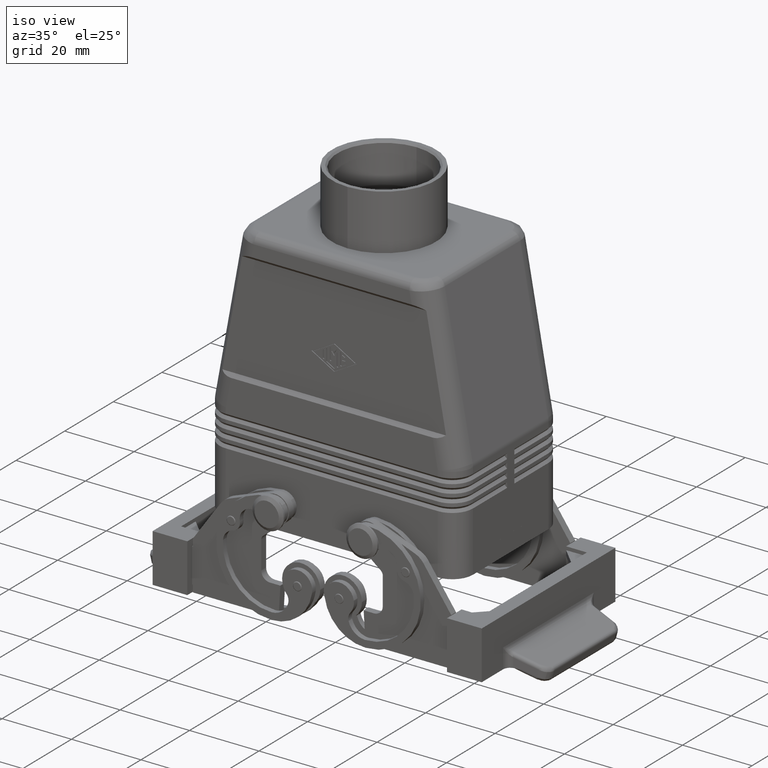
[diagram: clean part render]
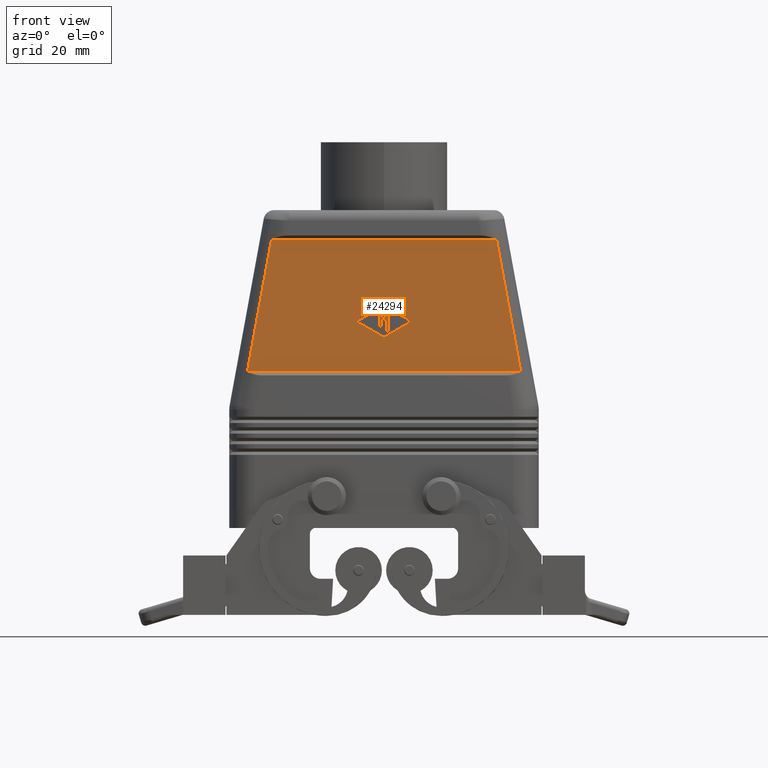
[diagram: tour spotlight — one face highlighted and labeled with its STEP entity id]
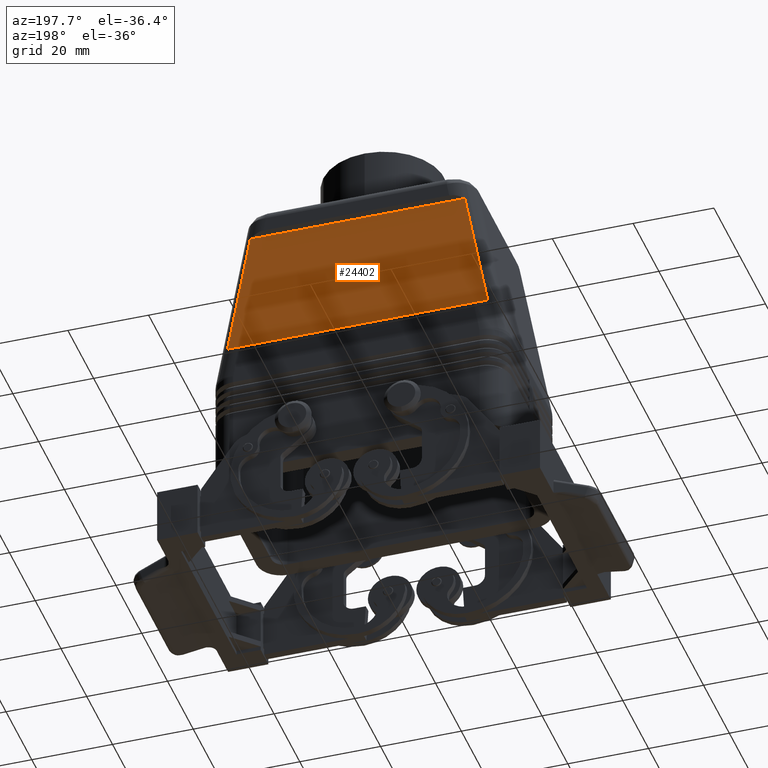
[diagram: tour spotlight — one face highlighted and labeled with its STEP entity id]
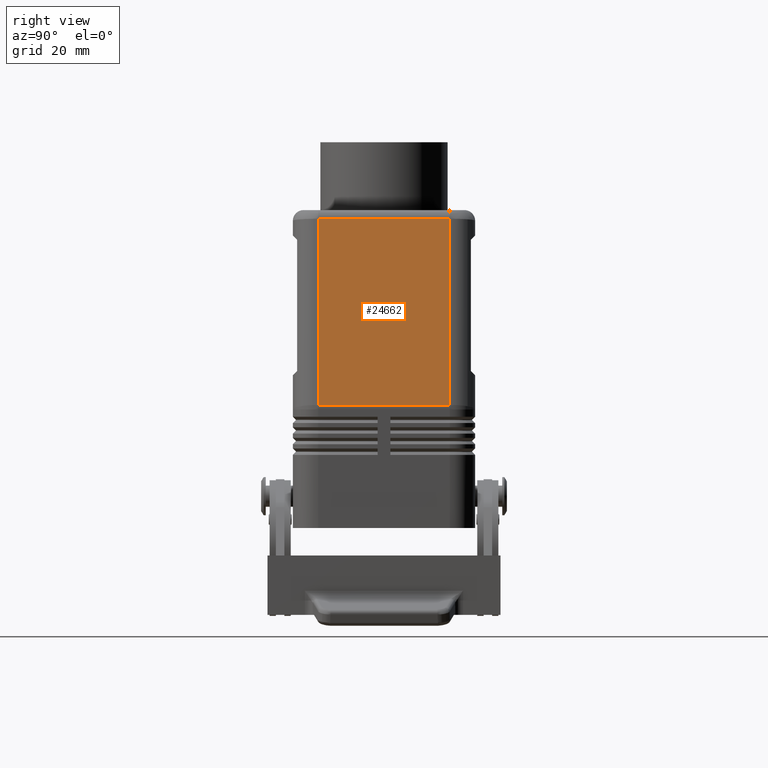
[diagram: tour spotlight — one face highlighted and labeled with its STEP entity id]
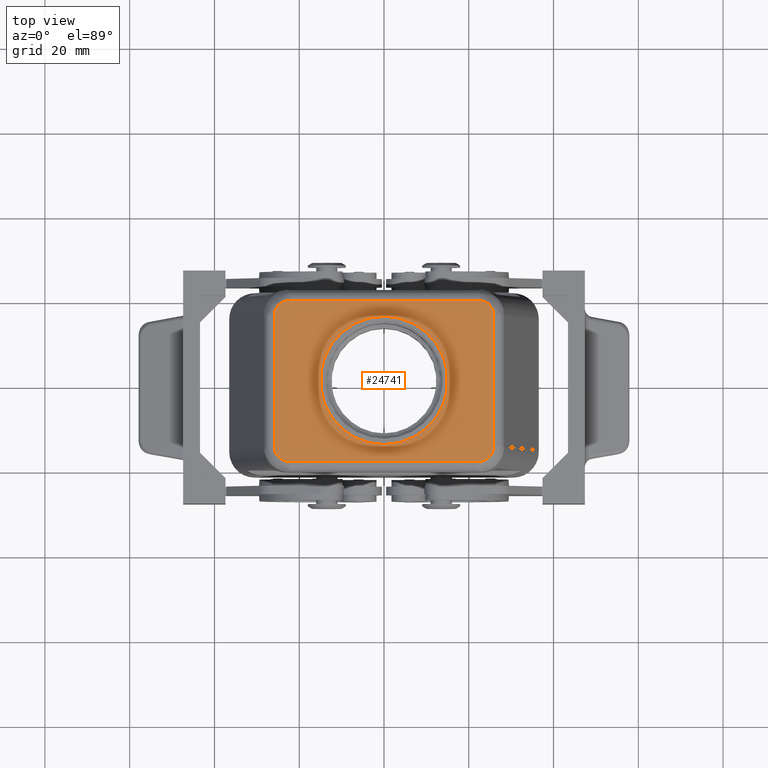
[diagram: tour spotlight — one face highlighted and labeled with its STEP entity id]
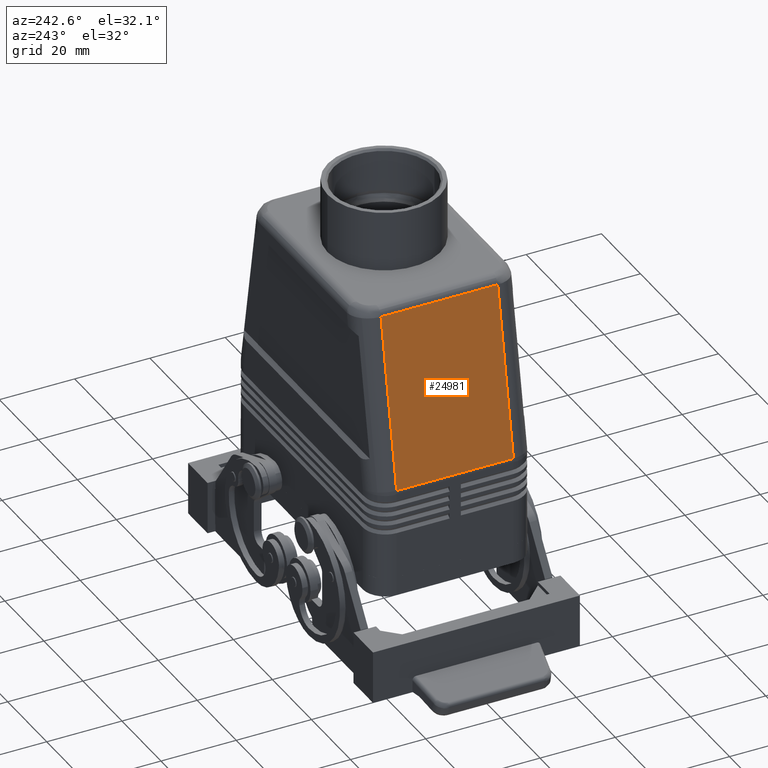
[diagram: tour spotlight — one face highlighted and labeled with its STEP entity id]
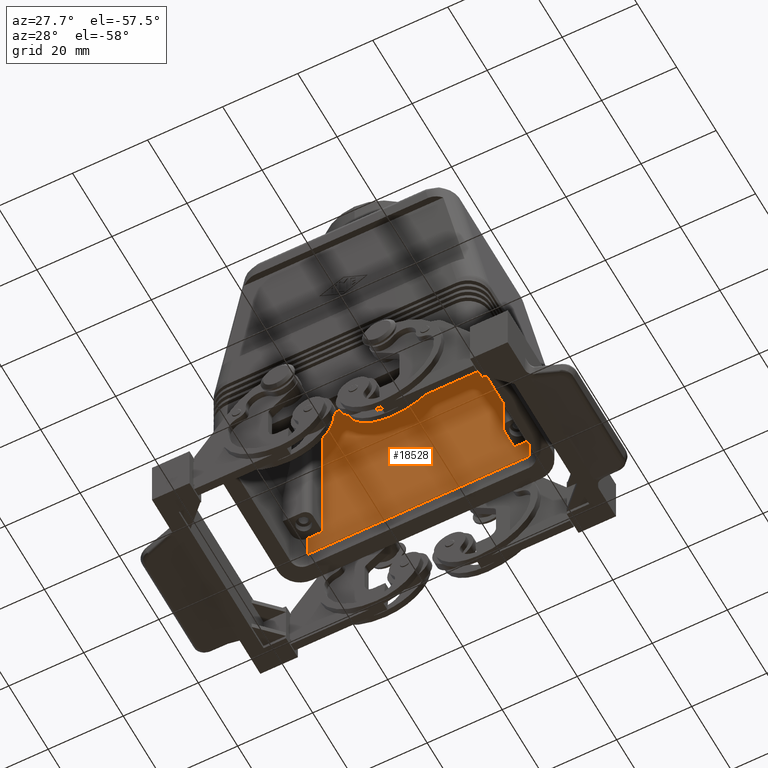
[diagram: tour spotlight — one face highlighted and labeled with its STEP entity id]
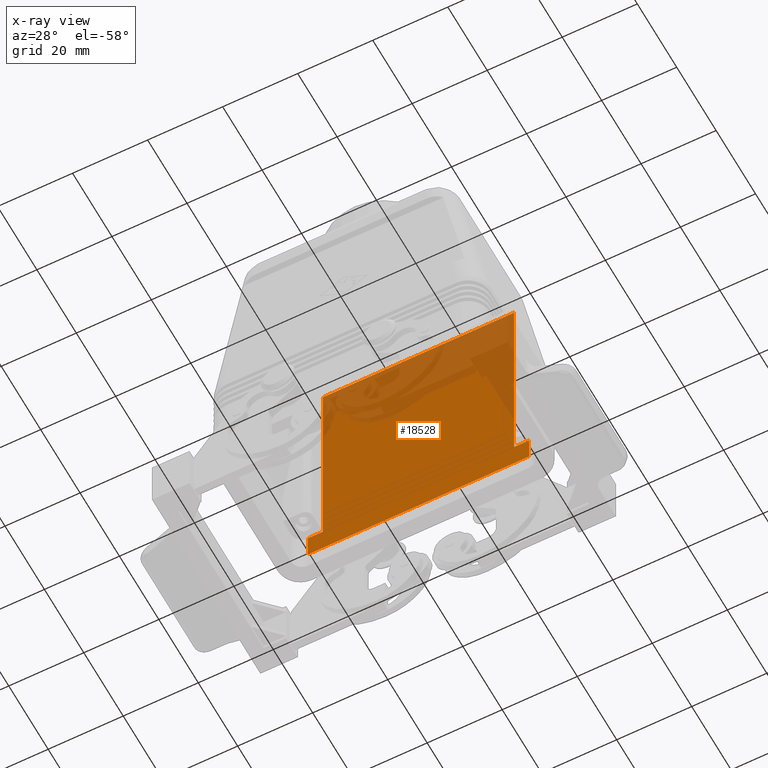
[diagram: x-ray of the same camera — body ghosted, this tour face saturated]
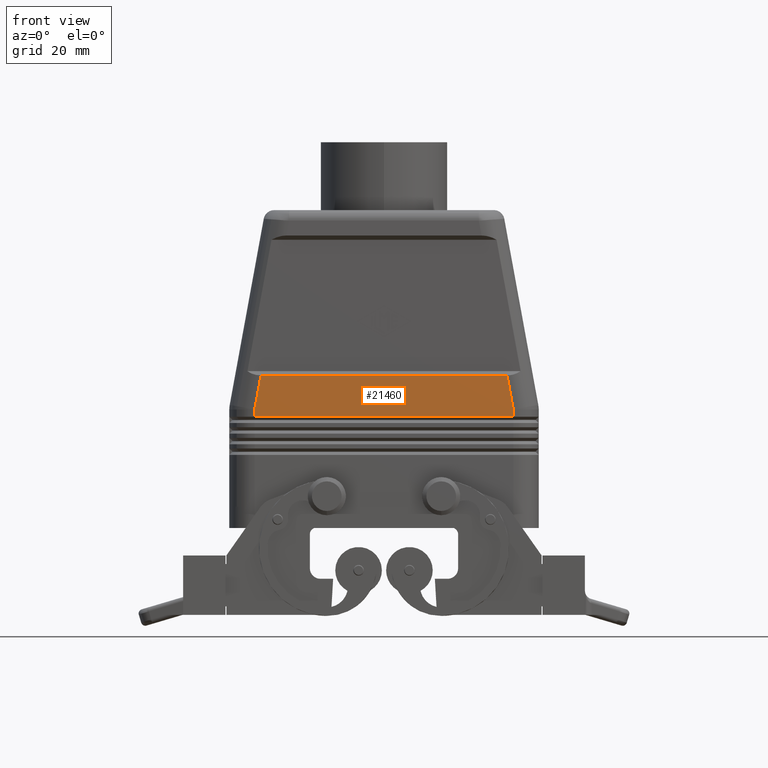
[diagram: tour spotlight — one face highlighted and labeled with its STEP entity id]
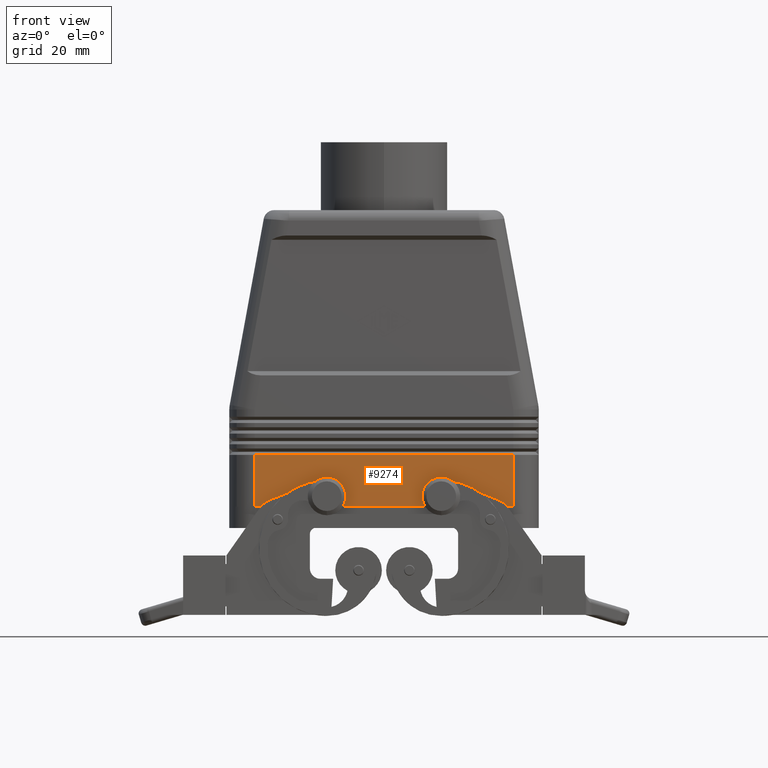
[diagram: tour spotlight — one face highlighted and labeled with its STEP entity id]
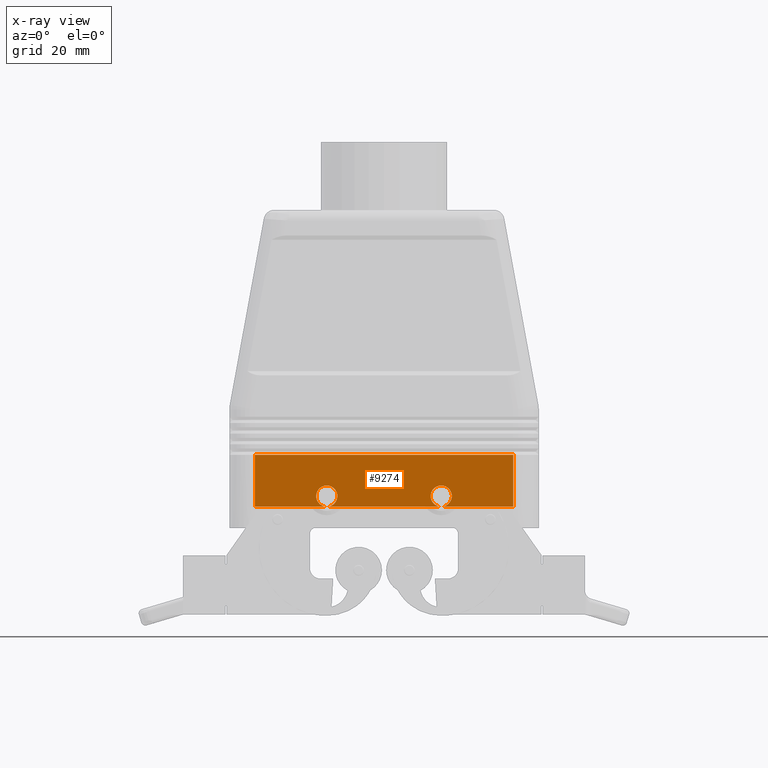
[diagram: x-ray of the same camera — body ghosted, this tour face saturated]
A machine part: a face-by-face anatomy tour. The part has 849 B-rep faces; the first image is the clean iso view, then the 8 largest visible faces are spotlighted one at a time (largest first), each with its STEP entity span.

Face 1 — front view, entity #24294. In plain terms, the highlighted planar face has unit normal (0, 1, 0).
Definition (entity closure, byte-faithful):
#1789=CARTESIAN_POINT('',(26.551731548058775,-20.500000000000004,68.0));
#1790=VERTEX_POINT('',#1789);
#1798=CARTESIAN_POINT('',(32.218398214725440,-20.500000000000004,37.0));
#1799=VERTEX_POINT('',#1798);
#1800=CARTESIAN_POINT('',(26.551731548058775,-20.500000000000004,68.0));
#1801=DIRECTION('',(0.179816171265674,0.0,-0.983700231041629));
#1802=VECTOR('',#1801,31.513665466129311);
#1803=LINE('',#1800,#1802);
#1804=EDGE_CURVE('',#1790,#1799,#1803,.T.);
#2023=CARTESIAN_POINT('',(-32.218398214725440,-20.500000000000004,37.0));
#2024=VERTEX_POINT('',#2023);
#2032=CARTESIAN_POINT('',(-26.551731548058775,-20.500000000000004,68.0));
#2033=VERTEX_POINT('',#2032);
#2034=CARTESIAN_POINT('',(-32.218398214725440,-20.500000000000004,37.0));
#2035=DIRECTION('',(0.179816171265674,0.0,0.983700231041629));
#2036=VECTOR('',#2035,31.513665466129311);
#2037=LINE('',#2034,#2036);
#2038=EDGE_CURVE('',#2024,#2033,#2037,.T.);
#23439=CARTESIAN_POINT('',(4.440892E-015,-20.500000000000004,52.498589722231728));
#23440=VERTEX_POINT('',#23439);
#23441=CARTESIAN_POINT('',(6.500444605026114,-20.500000000000004,48.750000000000000));
#23442=VERTEX_POINT('',#23441);
#23443=CARTESIAN_POINT('',(4.440892E-015,-20.500000000000004,52.498589722231728));
#23444=DIRECTION('',(0.866281716710862,0.0,-0.499555789969931));
#23445=VECTOR('',#23444,7.503846011788514);
#23446=LINE('',#23443,#23445);
#23447=EDGE_CURVE('',#23440,#23442,#23446,.T.);
#23479=CARTESIAN_POINT('',(8.881784E-015,-20.500000000000004,45.001410277768258));
#23480=VERTEX_POINT('',#23479);
#23481=CARTESIAN_POINT('',(6.500444605026114,-20.500000000000004,48.750000000000000));
#23482=DIRECTION('',(-0.866281716710861,0.0,-0.499555789969933));
#23483=VECTOR('',#23482,7.503846011788518);
#23484=LINE('',#23481,#23483);
#23485=EDGE_CURVE('',#23442,#23480,#23484,.T.);
#23563=CARTESIAN_POINT('',(-6.500444605026106,-20.500000000000004,48.750000000000000));
#23564=VERTEX_POINT('',#23563);
#23565=CARTESIAN_POINT('',(8.881784E-015,-20.500000000000004,45.001410277768258));
#23566=DIRECTION('',(-0.866281716710861,0.0,0.499555789969932));
#23567=VECTOR('',#23566,7.503846011788526);
#23568=LINE('',#23565,#23567);
#23569=EDGE_CURVE('',#23480,#23564,#23568,.T.);
#23594=CARTESIAN_POINT('',(-6.500444605026106,-20.500000000000004,48.750000000000000));
#23595=DIRECTION('',(0.866281716710862,0.0,0.499555789969931));
#23596=VECTOR('',#23595,7.503846011788514);
#23597=LINE('',#23594,#23596);
#23598=EDGE_CURVE('',#23564,#23440,#23597,.T.);
#24267=CARTESIAN_POINT('',(0.0,-20.500000000000004,68.0));
#24268=DIRECTION('',(0.0,1.0,0.0));
#24269=DIRECTION('',(0.0,0.0,1.0));
#24270=AXIS2_PLACEMENT_3D('',#24267,#24268,#24269);
#24271=PLANE('',#24270);
#24272=ORIENTED_EDGE('',*,*,#1804,.F.);
#24273=CARTESIAN_POINT('',(-26.551731548058775,-20.500000000000004,68.0));
#24274=DIRECTION('',(1.0,0.0,0.0));
#24275=VECTOR('',#24274,53.103463096117551);
#24276=LINE('',#24273,#24275);
#24277=EDGE_CURVE('',#2033,#1790,#24276,.T.);
#24278=ORIENTED_EDGE('',*,*,#24277,.F.);
#24279=ORIENTED_EDGE('',*,*,#2038,.F.);
#24280=CARTESIAN_POINT('',(-32.218398214725440,-20.500000000000004,37.0));
#24281=DIRECTION('',(1.0,0.0,0.0));
#24282=VECTOR('',#24281,64.436796429450879);
#24283=LINE('',#24280,#24282);
#24284=EDGE_CURVE('',#2024,#1799,#24283,.T.);
#24285=ORIENTED_EDGE('',*,*,#24284,.T.);
#24286=EDGE_LOOP('',(#24272,#24278,#24279,#24285));
#24287=FACE_OUTER_BOUND('',#24286,.T.);
#24288=ORIENTED_EDGE('',*,*,#23569,.T.);
#24289=ORIENTED_EDGE('',*,*,#23598,.T.);
#24290=ORIENTED_EDGE('',*,*,#23447,.T.);
#24291=ORIENTED_EDGE('',*,*,#23485,.T.);
#24292=EDGE_LOOP('',(#24288,#24289,#24290,#24291));
#24293=FACE_BOUND('',#24292,.T.);
#24294=ADVANCED_FACE('',(#24287,#24293),#24271,.F.);

Face 2 — auxiliary view, entity #24402. In plain terms, the highlighted planar face has unit normal (0, -1, 0).
Definition (entity closure, byte-faithful):
#1631=CARTESIAN_POINT('',(-26.551731548058775,20.500000000000004,68.0));
#1632=VERTEX_POINT('',#1631);
#1640=CARTESIAN_POINT('',(-32.218398214725717,20.499999999999844,36.999999999999829));
#1641=VERTEX_POINT('',#1640);
#1642=CARTESIAN_POINT('',(-26.551731548058775,20.500000000000004,68.0));
#1643=DIRECTION('',(-0.179816171265682,-5.073104E-015,-0.983700231041627));
#1644=VECTOR('',#1643,31.513665466129527);
#1645=LINE('',#1642,#1644);
#1646=EDGE_CURVE('',#1632,#1641,#1645,.T.);
#1949=CARTESIAN_POINT('',(32.218398214725717,20.499999999999844,36.999999999999829));
#1950=VERTEX_POINT('',#1949);
#1958=CARTESIAN_POINT('',(26.551731548058775,20.500000000000004,68.0));
#1959=VERTEX_POINT('',#1958);
#1960=CARTESIAN_POINT('',(32.218398214725717,20.499999999999844,36.999999999999829));
#1961=DIRECTION('',(-0.179816171265682,5.073104E-015,0.983700231041627));
#1962=VECTOR('',#1961,31.513665466129527);
#1963=LINE('',#1960,#1962);
#1964=EDGE_CURVE('',#1950,#1959,#1963,.T.);
#24381=CARTESIAN_POINT('',(0.0,20.499999999999844,36.999999999999829));
#24382=DIRECTION('',(0.0,-1.0,0.0));
#24383=DIRECTION('',(0.0,0.0,-1.0));
#24384=AXIS2_PLACEMENT_3D('',#24381,#24382,#24383);
#24385=PLANE('',#24384);
#24386=ORIENTED_EDGE('',*,*,#1964,.F.);
#24387=CARTESIAN_POINT('',(-32.218398214725717,20.499999999999844,36.999999999999829));
#24388=DIRECTION('',(1.0,0.0,0.0));
#24389=VECTOR('',#24388,64.436796429451434);
#24390=LINE('',#24387,#24389);
#24391=EDGE_CURVE('',#1641,#1950,#24390,.T.);
#24392=ORIENTED_EDGE('',*,*,#24391,.F.);
#24393=ORIENTED_EDGE('',*,*,#1646,.F.);
#24394=CARTESIAN_POINT('',(-26.551731548058775,20.500000000000004,68.0));
#24395=DIRECTION('',(1.0,0.0,0.0));
#24396=VECTOR('',#24395,53.103463096117551);
#24397=LINE('',#24394,#24396);
#24398=EDGE_CURVE('',#1632,#1959,#24397,.T.);
#24399=ORIENTED_EDGE('',*,*,#24398,.T.);
#24400=EDGE_LOOP('',(#24386,#24392,#24393,#24399));
#24401=FACE_OUTER_BOUND('',#24400,.T.);
#24402=ADVANCED_FACE('',(#24401),#24385,.F.);

Face 3 — right view, entity #24662. In plain terms, the highlighted planar face has unit normal (0.9837, 0, 0.1798).
Definition (entity closure, byte-faithful):
#1848=CARTESIAN_POINT('',(28.374815190550638,-15.500000000000000,72.949540428164170));
#1849=VERTEX_POINT('',#1848);
#1857=CARTESIAN_POINT('',(28.374815190550638,15.500000000000000,72.949540428164170));
#1858=VERTEX_POINT('',#1857);
#1859=CARTESIAN_POINT('',(28.374815190550638,-15.500000000000000,72.949540428164170));
#1860=DIRECTION('',(0.0,1.0,0.0));
#1861=VECTOR('',#1860,31.0);
#1862=LINE('',#1859,#1861);
#1863=EDGE_CURVE('',#1849,#1858,#1862,.T.);
#24488=CARTESIAN_POINT('',(36.402201386249772,15.499999999999998,29.035015945810070));
#24489=VERTEX_POINT('',#24488);
#24490=CARTESIAN_POINT('',(28.374815190550638,15.500000000000000,72.949540428164170));
#24491=DIRECTION('',(0.179816171265674,-3.979100E-017,-0.983700231041629));
#24492=VECTOR('',#24491,44.642181730356526);
#24493=LINE('',#24490,#24492);
#24494=EDGE_CURVE('',#1858,#24489,#24493,.T.);
#24628=CARTESIAN_POINT('',(36.402201386249772,-15.499999999999998,29.035015945810070));
#24629=VERTEX_POINT('',#24628);
#24630=CARTESIAN_POINT('',(36.402201386249772,15.499999999999998,29.035015945810070));
#24631=DIRECTION('',(0.0,-1.0,0.0));
#24632=VECTOR('',#24631,30.999999999999996);
#24633=LINE('',#24630,#24632);
#24634=EDGE_CURVE('',#24489,#24629,#24633,.T.);
#24646=CARTESIAN_POINT('',(36.500000000000000,0.0,28.499999999999996));
#24647=DIRECTION('',(0.983700231041629,0.0,0.179816171265674));
#24648=DIRECTION('',(0.179816171265674,0.0,-0.983700231041629));
#24649=AXIS2_PLACEMENT_3D('',#24646,#24647,#24648);
#24650=PLANE('',#24649);
#24651=ORIENTED_EDGE('',*,*,#24494,.F.);
#24652=ORIENTED_EDGE('',*,*,#1863,.F.);
#24653=CARTESIAN_POINT('',(36.402201386249772,-15.499999999999998,29.035015945810070));
#24654=DIRECTION('',(-0.179816171265674,-3.979100E-017,0.983700231041629));
#24655=VECTOR('',#24654,44.642181730356526);
#24656=LINE('',#24653,#24655);
#24657=EDGE_CURVE('',#24629,#1849,#24656,.T.);
#24658=ORIENTED_EDGE('',*,*,#24657,.F.);
#24659=ORIENTED_EDGE('',*,*,#24634,.F.);
#24660=EDGE_LOOP('',(#24651,#24652,#24658,#24659));
#24661=FACE_OUTER_BOUND('',#24660,.T.);
#24662=ADVANCED_FACE('',(#24661),#24650,.T.);

Face 4 — top view, entity #24741. In plain terms, the highlighted planar face has unit normal (0, 0, 1).
Definition (entity closure, byte-faithful):
#1690=CARTESIAN_POINT('',(-25.915564612946564,-15.499999999999998,74.999999999999986));
#1691=VERTEX_POINT('',#1690);
#1699=CARTESIAN_POINT('',(-25.915564612946564,15.499999999999998,74.999999999999986));
#1700=VERTEX_POINT('',#1699);
#1701=CARTESIAN_POINT('',(-25.915564612946564,-15.499999999999998,74.999999999999986));
#1702=DIRECTION('',(0.0,1.0,0.0));
#1703=VECTOR('',#1702,30.999999999999996);
#1704=LINE('',#1701,#1703);
#1705=EDGE_CURVE('',#1691,#1700,#1704,.T.);
#7873=CARTESIAN_POINT('',(-1.836910E-015,14.999999999999993,75.0));
#7874=VERTEX_POINT('',#7873);
#7890=CARTESIAN_POINT('',(-1.836910E-015,-15.000000000000014,74.999999999999986));
#7891=VERTEX_POINT('',#7890);
#7898=CARTESIAN_POINT('',(0.0,-9.924425E-015,74.999999999999986));
#7899=DIRECTION('',(0.0,0.0,-1.0));
#7900=DIRECTION('',(0.0,1.0,0.0));
#7901=AXIS2_PLACEMENT_3D('',#7898,#7899,#7900);
#7902=CIRCLE('',#7901,15.000000000000004);
#7903=EDGE_CURVE('',#7874,#7891,#7902,.T.);
#9306=CARTESIAN_POINT('',(0.0,-9.924425E-015,74.999999999999986));
#9307=DIRECTION('',(0.0,0.0,-1.0));
#9308=DIRECTION('',(0.0,1.0,0.0));
#9309=AXIS2_PLACEMENT_3D('',#9306,#9307,#9308);
#9310=CIRCLE('',#9309,15.000000000000004);
#9311=EDGE_CURVE('',#7891,#7874,#9310,.T.);
#24570=CARTESIAN_POINT('',(22.357570124835192,19.0,74.999999999999986));
#24571=VERTEX_POINT('',#24570);
#24579=CARTESIAN_POINT('',(25.915564612946561,15.499999999999998,74.999999999999986));
#24580=VERTEX_POINT('',#24579);
#24581=CARTESIAN_POINT('',(22.357570124835192,15.499999999999998,74.999999999999986));
#24582=DIRECTION('',(0.0,0.0,-1.0));
#24583=DIRECTION('',(1.0,0.0,0.0));
#24584=AXIS2_PLACEMENT_3D('',#24581,#24582,#24583);
#24585=ELLIPSE('',#24584,3.557994488111374,3.500000000000000);
#24586=EDGE_CURVE('',#24571,#24580,#24585,.T.);
#24670=CARTESIAN_POINT('',(25.915564612946561,-15.499999999999998,74.999999999999986));
#24671=VERTEX_POINT('',#24670);
#24672=CARTESIAN_POINT('',(25.915564612946561,15.499999999999998,74.999999999999986));
#24673=DIRECTION('',(0.0,-1.0,0.0));
#24674=VECTOR('',#24673,30.999999999999996);
#24675=LINE('',#24672,#24674);
#24676=EDGE_CURVE('',#24580,#24671,#24675,.T.);
#24688=CARTESIAN_POINT('',(28.000000000000004,0.0,74.999999999999986));
#24689=DIRECTION('',(0.0,0.0,1.0));
#24690=DIRECTION('',(1.0,0.0,0.0));
#24691=AXIS2_PLACEMENT_3D('',#24688,#24689,#24690);
#24692=PLANE('',#24691);
#24693=ORIENTED_EDGE('',*,*,#24586,.F.);
#24694=CARTESIAN_POINT('',(-22.357570124835195,19.0,74.999999999999986));
#24695=VERTEX_POINT('',#24694);
#24696=CARTESIAN_POINT('',(-22.357570124835195,19.0,74.999999999999986));
#24697=DIRECTION('',(1.0,0.0,0.0));
#24698=VECTOR('',#24697,44.715140249670384);
#24699=LINE('',#24696,#24698);
#24700=EDGE_CURVE('',#24695,#24571,#24699,.T.);
#24701=ORIENTED_EDGE('',*,*,#24700,.F.);
#24702=CARTESIAN_POINT('',(-22.357570124835192,15.499999999999998,74.999999999999986));
#24703=DIRECTION('',(0.0,0.0,-1.0));
#24704=DIRECTION('',(-1.0,0.0,0.0));
#24705=AXIS2_PLACEMENT_3D('',#24702,#24703,#24704);
#24706=ELLIPSE('',#24705,3.557994488111374,3.500000000000000);
#24707=EDGE_CURVE('',#1700,#24695,#24706,.T.);
#24708=ORIENTED_EDGE('',*,*,#24707,.F.);
#24709=ORIENTED_EDGE('',*,*,#1705,.F.);
#24710=CARTESIAN_POINT('',(-22.357570124835195,-19.0,74.999999999999986));
#24711=VERTEX_POINT('',#24710);
#24712=CARTESIAN_POINT('',(-22.357570124835192,-15.499999999999998,74.999999999999986));
#24713=DIRECTION('',(0.0,0.0,-1.0));
#24714=DIRECTION('',(-1.0,0.0,0.0));
#24715=AXIS2_PLACEMENT_3D('',#24712,#24713,#24714);
#24716=ELLIPSE('',#24715,3.557994488111374,3.500000000000000);
#24717=EDGE_CURVE('',#24711,#1691,#24716,.T.);
#24718=ORIENTED_EDGE('',*,*,#24717,.F.);
#24719=CARTESIAN_POINT('',(22.357570124835192,-19.0,74.999999999999986));
#24720=VERTEX_POINT('',#24719);
#24721=CARTESIAN_POINT('',(22.357570124835192,-19.0,74.999999999999986));
#24722=DIRECTION('',(-1.0,0.0,0.0));
#24723=VECTOR('',#24722,44.715140249670384);
#24724=LINE('',#24721,#24723);
#24725=EDGE_CURVE('',#24720,#24711,#24724,.T.);
#24726=ORIENTED_EDGE('',*,*,#24725,.F.);
#24727=CARTESIAN_POINT('',(22.357570124835192,-15.499999999999998,74.999999999999986));
#24728=DIRECTION('',(0.0,0.0,-1.0));
#24729=DIRECTION('',(1.0,0.0,0.0));
#24730=AXIS2_PLACEMENT_3D('',#24727,#24728,#24729);
#24731=ELLIPSE('',#24730,3.557994488111374,3.500000000000000);
#24732=EDGE_CURVE('',#24671,#24720,#24731,.T.);
#24733=ORIENTED_EDGE('',*,*,#24732,.F.);
#24734=ORIENTED_EDGE('',*,*,#24676,.F.);
#24735=EDGE_LOOP('',(#24693,#24701,#24708,#24709,#24718,#24726,#24733,#24734));
#24736=FACE_OUTER_BOUND('',#24735,.T.);
#24737=ORIENTED_EDGE('',*,*,#9311,.T.);
#24738=ORIENTED_EDGE('',*,*,#7903,.T.);
#24739=EDGE_LOOP('',(#24737,#24738));
#24740=FACE_BOUND('',#24739,.T.);
#24741=ADVANCED_FACE('',(#24736,#24740),#24692,.T.);

Face 5 — auxiliary view, entity #24981. In plain terms, the highlighted planar face has unit normal (-0.9837, 0, 0.1798).
Definition (entity closure, byte-faithful):
#1732=CARTESIAN_POINT('',(-36.402201386249772,-15.499999999999998,29.035015945810073));
#1733=VERTEX_POINT('',#1732);
#1741=CARTESIAN_POINT('',(-36.402201386249772,15.499999999999998,29.035015945810073));
#1742=VERTEX_POINT('',#1741);
#1743=CARTESIAN_POINT('',(-36.402201386249772,-15.499999999999998,29.035015945810073));
#1744=DIRECTION('',(0.0,1.0,0.0));
#1745=VECTOR('',#1744,30.999999999999996);
#1746=LINE('',#1743,#1745);
#1747=EDGE_CURVE('',#1733,#1742,#1746,.T.);
#24450=CARTESIAN_POINT('',(-28.374815190550638,-15.500000000000000,72.949540428164170));
#24451=VERTEX_POINT('',#24450);
#24459=CARTESIAN_POINT('',(-28.374815190550638,-15.500000000000000,72.949540428164170));
#24460=DIRECTION('',(-0.179816171265674,3.979100E-017,-0.983700231041629));
#24461=VECTOR('',#24460,44.642181730356526);
#24462=LINE('',#24459,#24461);
#24463=EDGE_CURVE('',#24451,#1733,#24462,.T.);
#24958=CARTESIAN_POINT('',(-28.000000000000004,0.0,74.999999999999986));
#24959=DIRECTION('',(-0.983700231041629,0.0,0.179816171265674));
#24960=DIRECTION('',(0.179816171265674,0.0,0.983700231041629));
#24961=AXIS2_PLACEMENT_3D('',#24958,#24959,#24960);
#24962=PLANE('',#24961);
#24963=ORIENTED_EDGE('',*,*,#24463,.F.);
#24964=CARTESIAN_POINT('',(-28.374815190550638,15.500000000000000,72.949540428164170));
#24965=VERTEX_POINT('',#24964);
#24966=CARTESIAN_POINT('',(-28.374815190550638,15.500000000000000,72.949540428164170));
#24967=DIRECTION('',(0.0,-1.0,0.0));
#24968=VECTOR('',#24967,31.0);
#24969=LINE('',#24966,#24968);
#24970=EDGE_CURVE('',#24965,#24451,#24969,.T.);
#24971=ORIENTED_EDGE('',*,*,#24970,.F.);
#24972=CARTESIAN_POINT('',(-36.402201386249772,15.499999999999998,29.035015945810073));
#24973=DIRECTION('',(0.179816171265674,3.979100E-017,0.983700231041629));
#24974=VECTOR('',#24973,44.642181730356526);
#24975=LINE('',#24972,#24974);
#24976=EDGE_CURVE('',#1742,#24965,#24975,.T.);
#24977=ORIENTED_EDGE('',*,*,#24976,.F.);
#24978=ORIENTED_EDGE('',*,*,#1747,.F.);
#24979=EDGE_LOOP('',(#24963,#24971,#24977,#24978));
#24980=FACE_OUTER_BOUND('',#24979,.T.);
#24981=ADVANCED_FACE('',(#24980),#24962,.T.);

Face 6 — auxiliary view, entity #18528. An x-ray twin of the same camera follows (body ghosted, this face saturated) — the face is partly hidden behind the body. In plain terms, the highlighted planar face has unit normal (0, 1, 0).
Definition (entity closure, byte-faithful):
#7995=CARTESIAN_POINT('',(29.500000000000000,17.500000000000000,5.0));
#7996=VERTEX_POINT('',#7995);
#8004=CARTESIAN_POINT('',(-29.500000000000000,17.500000000000000,5.0));
#8005=VERTEX_POINT('',#8004);
#8006=CARTESIAN_POINT('',(-29.500000000000000,17.500000000000000,5.0));
#8007=DIRECTION('',(1.0,0.0,0.0));
#8008=VECTOR('',#8007,59.0);
#8009=LINE('',#8006,#8008);
#8010=EDGE_CURVE('',#8005,#7996,#8009,.T.);
#17950=CARTESIAN_POINT('',(-29.500000000000000,17.500000000000000,12.000000000000002));
#17951=VERTEX_POINT('',#17950);
#17959=CARTESIAN_POINT('',(-25.500000000000004,17.500000000000000,12.000000000000002));
#17960=VERTEX_POINT('',#17959);
#17961=CARTESIAN_POINT('',(-29.500000000000000,17.500000000000000,12.000000000000002));
#17962=DIRECTION('',(1.0,0.0,0.0));
#17963=VECTOR('',#17962,3.999999999999996);
#17964=LINE('',#17961,#17963);
#17965=EDGE_CURVE('',#17951,#17960,#17964,.T.);
#18099=CARTESIAN_POINT('',(25.500000000000004,17.500000000000000,71.0));
#18100=VERTEX_POINT('',#18099);
#18107=CARTESIAN_POINT('',(25.500000000000004,17.500000000000000,12.000000000000002));
#18108=VERTEX_POINT('',#18107);
#18109=CARTESIAN_POINT('',(25.500000000000004,17.500000000000000,71.0));
#18110=DIRECTION('',(0.0,0.0,-1.0));
#18111=VECTOR('',#18110,59.0);
#18112=LINE('',#18109,#18111);
#18113=EDGE_CURVE('',#18100,#18108,#18112,.T.);
#18343=CARTESIAN_POINT('',(29.500000000000000,17.500000000000000,12.000000000000002));
#18344=VERTEX_POINT('',#18343);
#18345=CARTESIAN_POINT('',(25.500000000000004,17.500000000000000,12.000000000000002));
#18346=DIRECTION('',(1.0,0.0,0.0));
#18347=VECTOR('',#18346,3.999999999999996);
#18348=LINE('',#18345,#18347);
#18349=EDGE_CURVE('',#18108,#18344,#18348,.T.);
#18390=CARTESIAN_POINT('',(-25.500000000000004,17.500000000000000,71.0));
#18391=VERTEX_POINT('',#18390);
#18398=CARTESIAN_POINT('',(-25.500000000000004,17.500000000000000,71.0));
#18399=DIRECTION('',(1.0,0.0,0.0));
#18400=VECTOR('',#18399,51.000000000000007);
#18401=LINE('',#18398,#18400);
#18402=EDGE_CURVE('',#18391,#18100,#18401,.T.);
#18424=CARTESIAN_POINT('',(-25.500000000000004,17.500000000000000,12.000000000000002));
#18425=DIRECTION('',(0.0,0.0,1.0));
#18426=VECTOR('',#18425,59.0);
#18427=LINE('',#18424,#18426);
#18428=EDGE_CURVE('',#17960,#18391,#18427,.T.);
#18487=CARTESIAN_POINT('',(29.500000000000000,17.500000000000000,5.0));
#18488=DIRECTION('',(0.0,0.0,1.0));
#18489=VECTOR('',#18488,7.000000000000002);
#18490=LINE('',#18487,#18489);
#18491=EDGE_CURVE('',#7996,#18344,#18490,.T.);
#18502=CARTESIAN_POINT('',(-29.500000000000000,17.500000000000000,5.0));
#18503=DIRECTION('',(0.0,0.0,1.0));
#18504=VECTOR('',#18503,7.000000000000002);
#18505=LINE('',#18502,#18504);
#18506=EDGE_CURVE('',#8005,#17951,#18505,.T.);
#18513=CARTESIAN_POINT('',(-29.500000000000000,17.500000000000000,0.0));
#18514=DIRECTION('',(0.0,1.0,0.0));
#18515=DIRECTION('',(0.0,0.0,1.0));
#18516=AXIS2_PLACEMENT_3D('',#18513,#18514,#18515);
#18517=PLANE('',#18516);
#18518=ORIENTED_EDGE('',*,*,#8010,.T.);
#18519=ORIENTED_EDGE('',*,*,#18491,.T.);
#18520=ORIENTED_EDGE('',*,*,#18349,.F.);
#18521=ORIENTED_EDGE('',*,*,#18113,.F.);
#18522=ORIENTED_EDGE('',*,*,#18402,.F.);
#18523=ORIENTED_EDGE('',*,*,#18428,.F.);
#18524=ORIENTED_EDGE('',*,*,#17965,.F.);
#18525=ORIENTED_EDGE('',*,*,#18506,.F.);
#18526=EDGE_LOOP('',(#18518,#18519,#18520,#18521,#18522,#18523,#18524,#18525));
#18527=FACE_OUTER_BOUND('',#18526,.T.);
#18528=ADVANCED_FACE('',(#18527),#18517,.F.);

Face 7 — front view, entity #21460. In plain terms, the highlighted planar face has unit normal (0, 1, 0).
Definition (entity closure, byte-faithful):
#1806=CARTESIAN_POINT('',(29.029613135587876,-21.500000000000000,36.0));
#1807=VERTEX_POINT('',#1806);
#1815=CARTESIAN_POINT('',(30.500000000000004,-21.500000000000000,27.956118918216024));
#1816=VERTEX_POINT('',#1815);
#1817=CARTESIAN_POINT('',(29.029613135587876,-21.500000000000000,36.0));
#1818=DIRECTION('',(0.179816171265674,0.0,-0.983700231041629));
#1819=VECTOR('',#1818,8.177167014860212);
#1820=LINE('',#1817,#1819);
#1821=EDGE_CURVE('',#1807,#1816,#1820,.T.);
#2006=CARTESIAN_POINT('',(-30.500000000000000,-21.500000000000000,27.956118918216028));
#2007=VERTEX_POINT('',#2006);
#2015=CARTESIAN_POINT('',(-29.029613135587876,-21.500000000000000,36.0));
#2016=VERTEX_POINT('',#2015);
#2017=CARTESIAN_POINT('',(-30.500000000000000,-21.500000000000000,27.956118918216028));
#2018=DIRECTION('',(0.179816171265674,0.0,0.983700231041629));
#2019=VECTOR('',#2018,8.177167014860208);
#2020=LINE('',#2017,#2019);
#2021=EDGE_CURVE('',#2007,#2016,#2020,.T.);
#2255=CARTESIAN_POINT('',(30.500000000000000,-21.500000000000000,26.250000000000004));
#2256=VERTEX_POINT('',#2255);
#2257=CARTESIAN_POINT('',(30.500000000000004,-21.500000000000000,27.956118918216024));
#2258=DIRECTION('',(0.0,0.0,-1.0));
#2259=VECTOR('',#2258,1.706118918216021);
#2260=LINE('',#2257,#2259);
#2261=EDGE_CURVE('',#1816,#2256,#2260,.T.);
#2744=CARTESIAN_POINT('',(-30.500000000000000,-21.500000000000000,26.250000000000004));
#2745=VERTEX_POINT('',#2744);
#2753=CARTESIAN_POINT('',(-30.500000000000000,-21.500000000000000,26.250000000000004));
#2754=DIRECTION('',(0.0,0.0,1.0));
#2755=VECTOR('',#2754,1.706118918216024);
#2756=LINE('',#2753,#2755);
#2757=EDGE_CURVE('',#2745,#2007,#2756,.T.);
#21318=CARTESIAN_POINT('',(30.500000000000000,-21.500000000000000,26.250000000000004));
#21319=DIRECTION('',(-1.0,0.0,0.0));
#21320=VECTOR('',#21319,61.0);
#21321=LINE('',#21318,#21320);
#21322=EDGE_CURVE('',#2256,#2745,#21321,.T.);
#21442=CARTESIAN_POINT('',(1.110223E-015,-21.500000000000000,35.305879321648717));
#21443=DIRECTION('',(0.0,1.0,0.0));
#21444=DIRECTION('',(0.0,0.0,1.0));
#21445=AXIS2_PLACEMENT_3D('',#21442,#21443,#21444);
#21446=PLANE('',#21445);
#21447=ORIENTED_EDGE('',*,*,#21322,.F.);
#21448=ORIENTED_EDGE('',*,*,#2261,.F.);
#21449=ORIENTED_EDGE('',*,*,#1821,.F.);
#21450=CARTESIAN_POINT('',(29.029613135587876,-21.500000000000000,36.0));
#21451=DIRECTION('',(-1.0,0.0,0.0));
#21452=VECTOR('',#21451,58.059226271175753);
#21453=LINE('',#21450,#21452);
#21454=EDGE_CURVE('',#1807,#2016,#21453,.T.);
#21455=ORIENTED_EDGE('',*,*,#21454,.T.);
#21456=ORIENTED_EDGE('',*,*,#2021,.F.);
#21457=ORIENTED_EDGE('',*,*,#2757,.F.);
#21458=EDGE_LOOP('',(#21447,#21448,#21449,#21455,#21456,#21457));
#21459=FACE_OUTER_BOUND('',#21458,.T.);
#21460=ADVANCED_FACE('',(#21459),#21446,.F.);

Face 8 — front view, entity #9274. An x-ray twin of the same camera follows (body ghosted, this face saturated) — the face is partly hidden behind the body. In plain terms, the highlighted planar face has unit normal (0, 1, 0).
Definition (entity closure, byte-faithful):
#2173=CARTESIAN_POINT('',(30.500000000000000,-21.500000000000000,17.250000000000004));
#2174=VERTEX_POINT('',#2173);
#4056=CARTESIAN_POINT('',(13.500000000000000,-21.500000000000014,9.999999999999996));
#4057=VERTEX_POINT('',#4056);
#4066=CARTESIAN_POINT('',(13.500000000000000,-21.500000000000018,5.0));
#4067=VERTEX_POINT('',#4066);
#4068=CARTESIAN_POINT('',(13.500000000000000,-21.500000000000018,7.499999999999998));
#4069=DIRECTION('',(0.0,1.0,0.0));
#4070=DIRECTION('',(0.0,0.0,1.0));
#4071=AXIS2_PLACEMENT_3D('',#4068,#4069,#4070);
#4072=CIRCLE('',#4071,2.499999999999999);
#4073=EDGE_CURVE('',#4067,#4057,#4072,.T.);
#4252=CARTESIAN_POINT('',(-13.500000000000000,-21.500000000000014,9.999999999999996));
#4253=VERTEX_POINT('',#4252);
#4262=CARTESIAN_POINT('',(-13.500000000000000,-21.500000000000018,5.0));
#4263=VERTEX_POINT('',#4262);
#4264=CARTESIAN_POINT('',(-13.500000000000000,-21.500000000000018,7.499999999999998));
#4265=DIRECTION('',(0.0,1.0,0.0));
#4266=DIRECTION('',(0.0,0.0,1.0));
#4267=AXIS2_PLACEMENT_3D('',#4264,#4265,#4266);
#4268=CIRCLE('',#4267,2.499999999999999);
#4269=EDGE_CURVE('',#4263,#4253,#4268,.T.);
#7922=CARTESIAN_POINT('',(30.500000000000000,-21.500000000000000,5.0));
#7923=VERTEX_POINT('',#7922);
#7924=CARTESIAN_POINT('',(30.500000000000000,-21.500000000000000,17.250000000000004));
#7925=DIRECTION('',(0.0,0.0,-1.0));
#7926=VECTOR('',#7925,12.250000000000004);
#7927=LINE('',#7924,#7926);
#7928=EDGE_CURVE('',#2174,#7923,#7927,.T.);
#7953=CARTESIAN_POINT('',(-30.500000000000004,-21.500000000000000,5.0));
#7954=VERTEX_POINT('',#7953);
#7962=CARTESIAN_POINT('',(-30.500000000000004,-21.500000000000000,17.250000000000011));
#7963=VERTEX_POINT('',#7962);
#7964=CARTESIAN_POINT('',(-30.500000000000004,-21.500000000000000,5.0));
#7965=DIRECTION('',(0.0,0.0,1.0));
#7966=VECTOR('',#7965,12.250000000000011);
#7967=LINE('',#7964,#7966);
#7968=EDGE_CURVE('',#7954,#7963,#7967,.T.);
#8205=CARTESIAN_POINT('',(13.500000000000000,-21.500000000000018,5.0));
#8206=DIRECTION('',(1.0,0.0,0.0));
#8207=VECTOR('',#8206,17.0);
#8208=LINE('',#8205,#8207);
#8209=EDGE_CURVE('',#4067,#7923,#8208,.T.);
#8232=CARTESIAN_POINT('',(-13.500000000000000,-21.500000000000018,5.0));
#8233=DIRECTION('',(1.0,0.0,0.0));
#8234=VECTOR('',#8233,27.0);
#8235=LINE('',#8232,#8234);
#8236=EDGE_CURVE('',#4263,#4067,#8235,.T.);
#8252=CARTESIAN_POINT('',(-30.500000000000004,-21.500000000000000,5.0));
#8253=DIRECTION('',(1.0,0.0,0.0));
#8254=VECTOR('',#8253,17.000000000000004);
#8255=LINE('',#8252,#8254);
#8256=EDGE_CURVE('',#7954,#4263,#8255,.T.);
#9240=CARTESIAN_POINT('',(1.110223E-015,-21.500000000000000,35.305879321648717));
#9241=DIRECTION('',(0.0,1.0,0.0));
#9242=DIRECTION('',(0.0,0.0,1.0));
#9243=AXIS2_PLACEMENT_3D('',#9240,#9241,#9242);
#9244=PLANE('',#9243);
#9245=ORIENTED_EDGE('',*,*,#8256,.T.);
#9246=ORIENTED_EDGE('',*,*,#4269,.T.);
#9247=CARTESIAN_POINT('',(-13.500000000000000,-21.500000000000018,7.499999999999998));
#9248=DIRECTION('',(0.0,1.0,0.0));
#9249=DIRECTION('',(0.0,0.0,1.0));
#9250=AXIS2_PLACEMENT_3D('',#9247,#9248,#9249);
#9251=CIRCLE('',#9250,2.499999999999999);
#9252=EDGE_CURVE('',#4253,#4263,#9251,.T.);
#9253=ORIENTED_EDGE('',*,*,#9252,.T.);
#9254=ORIENTED_EDGE('',*,*,#8236,.T.);
#9255=ORIENTED_EDGE('',*,*,#4073,.T.);
#9256=CARTESIAN_POINT('',(13.500000000000000,-21.500000000000018,7.499999999999998));
#9257=DIRECTION('',(0.0,1.0,0.0));
#9258=DIRECTION('',(0.0,0.0,1.0));
#9259=AXIS2_PLACEMENT_3D('',#9256,#9257,#9258);
#9260=CIRCLE('',#9259,2.499999999999999);
#9261=EDGE_CURVE('',#4057,#4067,#9260,.T.);
#9262=ORIENTED_EDGE('',*,*,#9261,.T.);
#9263=ORIENTED_EDGE('',*,*,#8209,.T.);
#9264=ORIENTED_EDGE('',*,*,#7928,.F.);
#9265=CARTESIAN_POINT('',(-30.500000000000004,-21.500000000000000,17.250000000000011));
#9266=DIRECTION('',(1.0,0.0,0.0));
#9267=VECTOR('',#9266,61.0);
#9268=LINE('',#9265,#9267);
#9269=EDGE_CURVE('',#7963,#2174,#9268,.T.);
#9270=ORIENTED_EDGE('',*,*,#9269,.F.);
#9271=ORIENTED_EDGE('',*,*,#7968,.F.);
#9272=EDGE_LOOP('',(#9245,#9246,#9253,#9254,#9255,#9262,#9263,#9264,#9270,#9271));
#9273=FACE_OUTER_BOUND('',#9272,.T.);
#9274=ADVANCED_FACE('',(#9273),#9244,.F.);